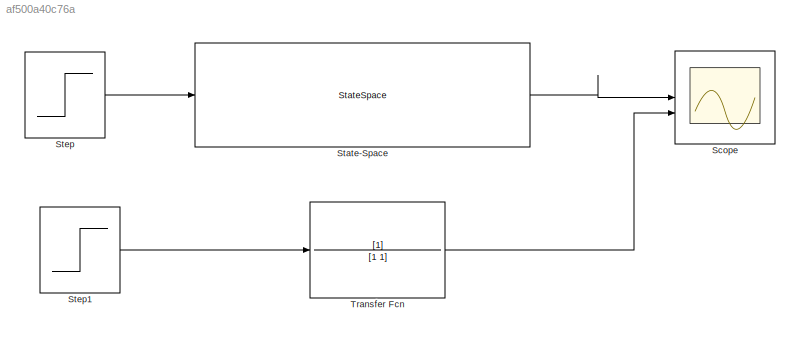
MODEL slx_af500a40c76a
KIND model
CONFIG AbsTol = auto
CONFIG EnableMultiTasking = off
CONFIG FixedStep = auto
CONFIG MaxStep = auto
CONFIG MinStep = auto
CONFIG RelTol = 1e-3
CONFIG SampleTimeConstraint = Unconstrained
CONFIG SolverName = VariableStepAuto
CONFIG StartTime = 0.0
CONFIG StopTime = 10.0
BLOCK [Scope] Scope
  Floating = off
  NumInputPorts = 2
  ScopeSpecificationString = Simulink.scopes.TimeScopeBlockCfg('CurrentConfiguration', extmgr.ConfigurationSet(extmgr.Configuration('Core','General UI',true),extmgr.Configuration('Core','Source UI',true),extmgr.Configuration('Sources','WiredSimulink',true),extmgr.Configuration('Visuals','Time Domain',true,'SerializedDisplays',{struct('MinYLimReal','-0.12498','MaxYLimReal','1.12486','YLabelReal','','MinYLimMag','0.00000','MaxY...<+1375ch>
BLOCK [StateSpace] State-Space
  A = -1
  D = 0
  InitialCondition = 0
BLOCK [Step] Step
  SampleTime = 0
BLOCK [Step] Step1
  SampleTime = 0
  Time = 2
BLOCK [TransferFcn] Transfer Fcn
  Denominator = [1 1]
LINE State-Space:1 -> Scope:1
LINE Step1:1 -> Transfer Fcn:1
LINE Step:1 -> State-Space:1
LINE Transfer Fcn:1 -> Scope:2
